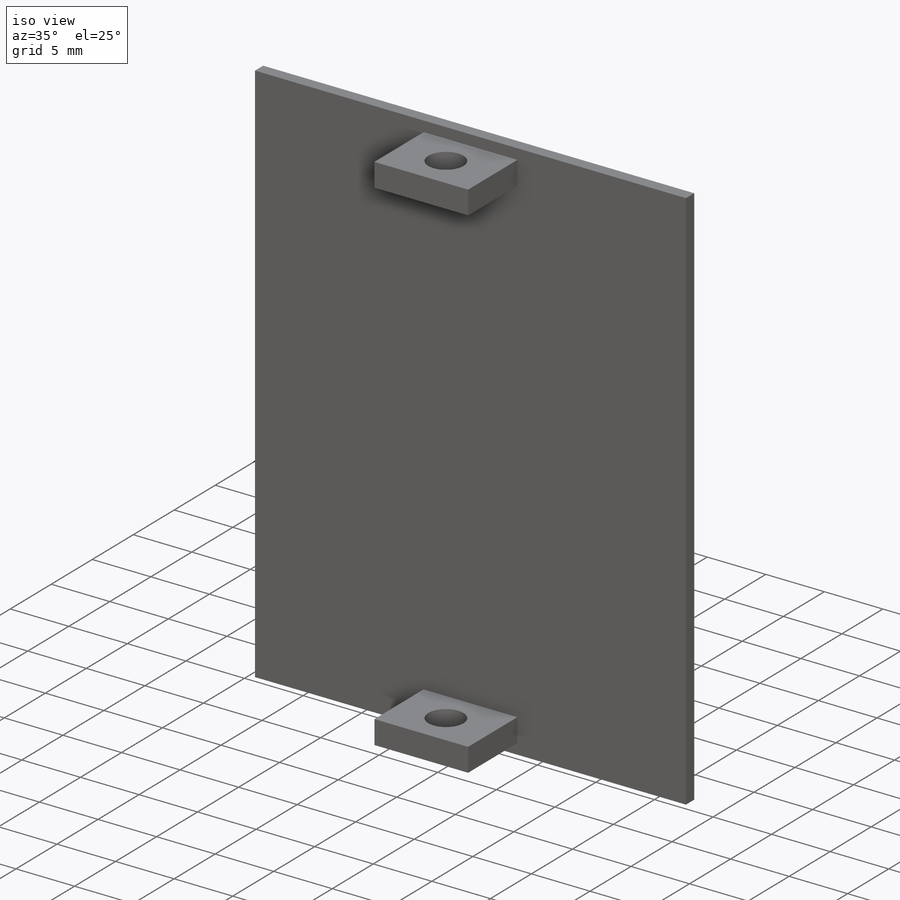
[diagram: iso view]
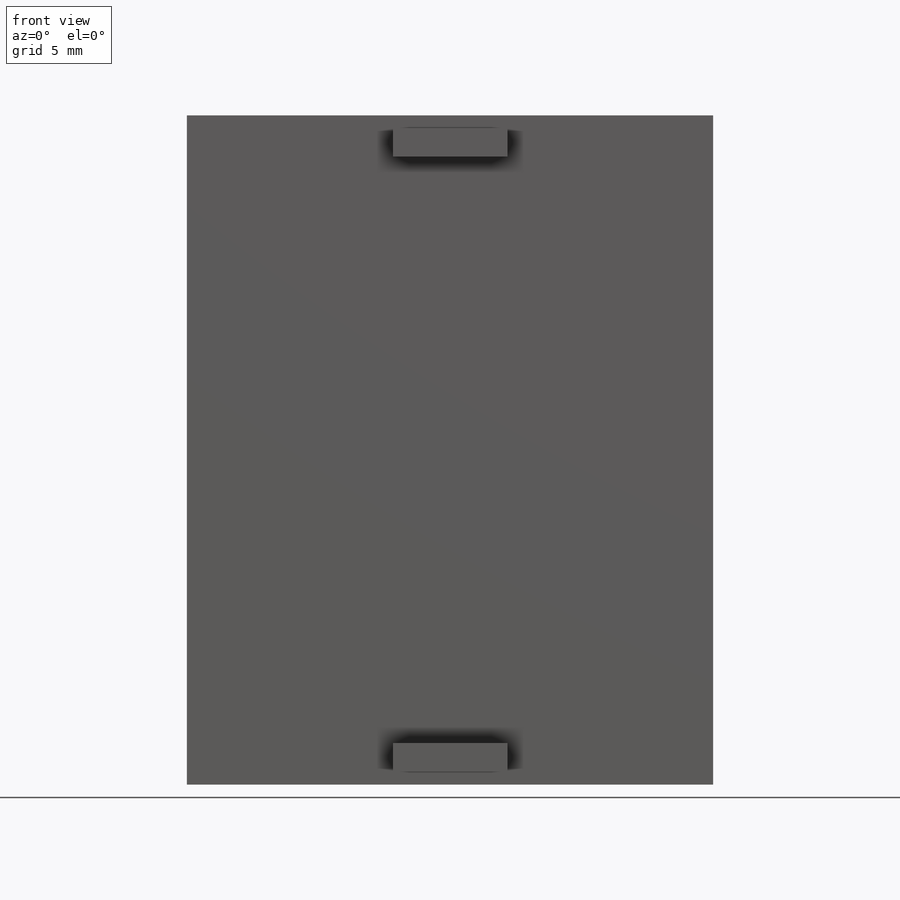
[diagram: front view]
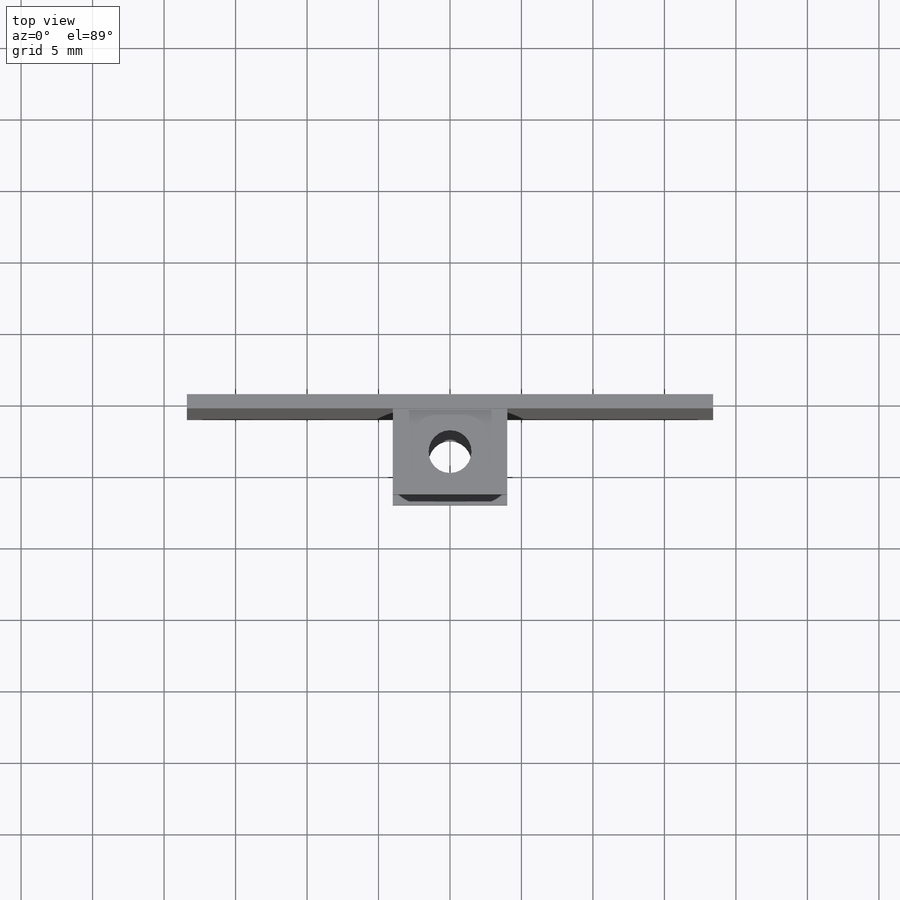
[diagram: top view]
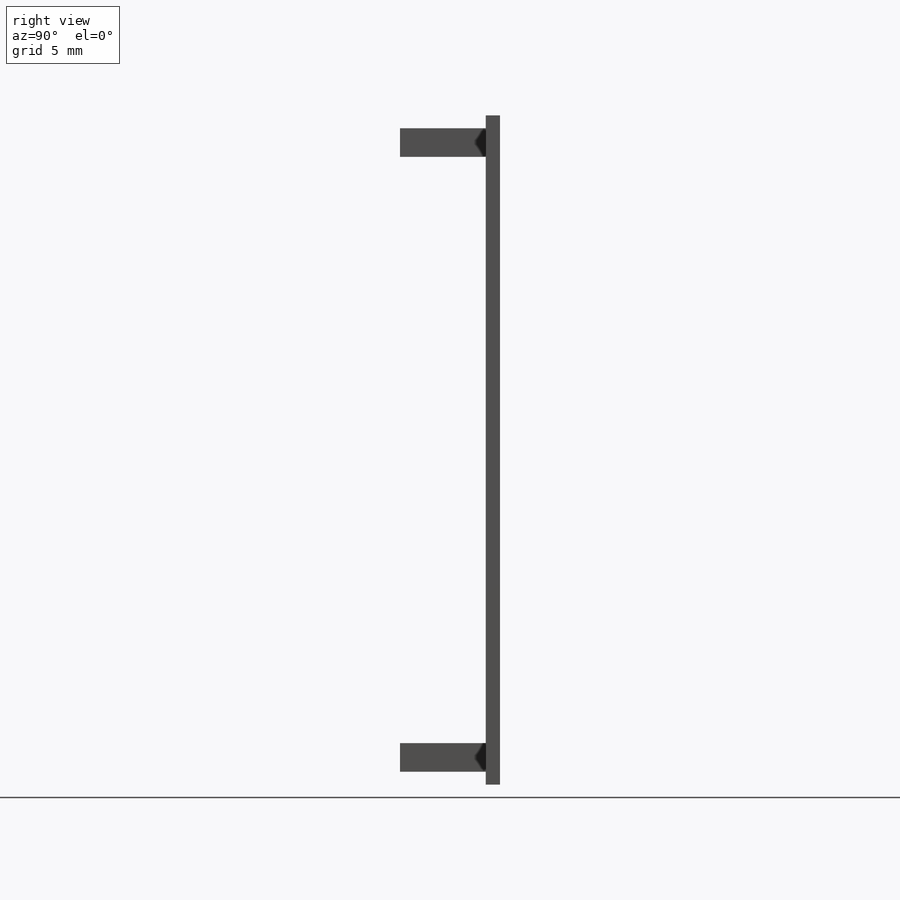
[diagram: right view]
SOLIDWORKS PART (.sldprt)
format: sldprt  version: not decoded by parser v0  size: 158,720 bytes
history: native  units: mm
features: sketch x4, plane x3, extrude x3, material x1, cut_extrude x1 (+10 scaffold rows collapsed)
feature tree (22):
  scaffold x10  (default folders/planes/origin — collapsed)
  material  "Material <sin especificar>"
  plane  "Alzado"
  plane  "Planta"
  plane  "Vista lateral"
  sketch  "Croquis1"  dims[D1=46.8mm D2=36.8mm]
  extrude  "Saliente-Extruir1"  Depth=1mm
  sketch  "Croquis2"  dims[D1=35.0mm D2=45.0mm D3=2.0mm D4=8.0mm D5=2.0mm D6=8.0mm]
  extrude  "Saliente-Extruir2"  Depth=7mm
  extrude  "Saliente-Extruir3"  [1 undecoded]
  sketch  "Croquis2<3>"  dims[D1=7.0mm]
  sketch  "Croquis6"  dims[D1=~1.520566mm]
  cut_extrude  "Cortar-Extruir1"  [1 undecoded]
decode coverage: 6 of 8 modeling features carry decoded parameters
note: ~ marks probable driven/reference dimensions
note: 2 parameter values undecoded
note: suppression state not decoded; provenance and decode notes live in map.json
